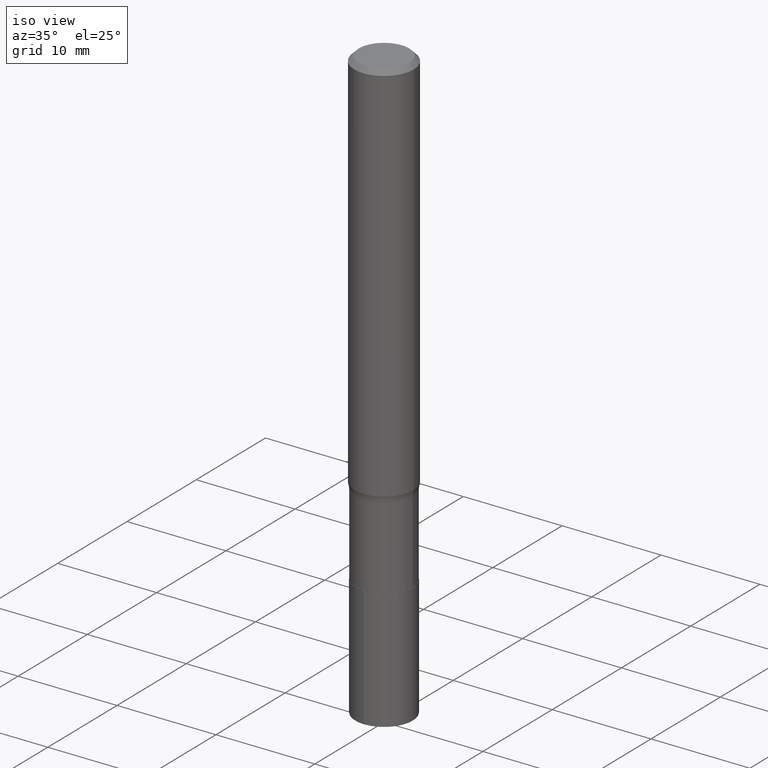
[diagram: clean part render]
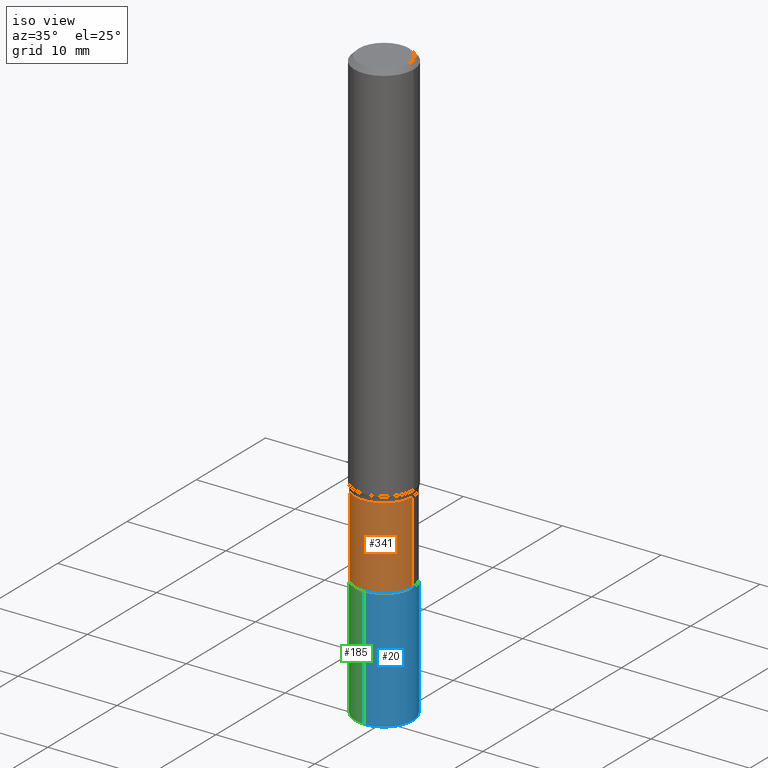
[diagram: same view with three faces highlighted in distinct colors, each labeled with its STEP entity id]
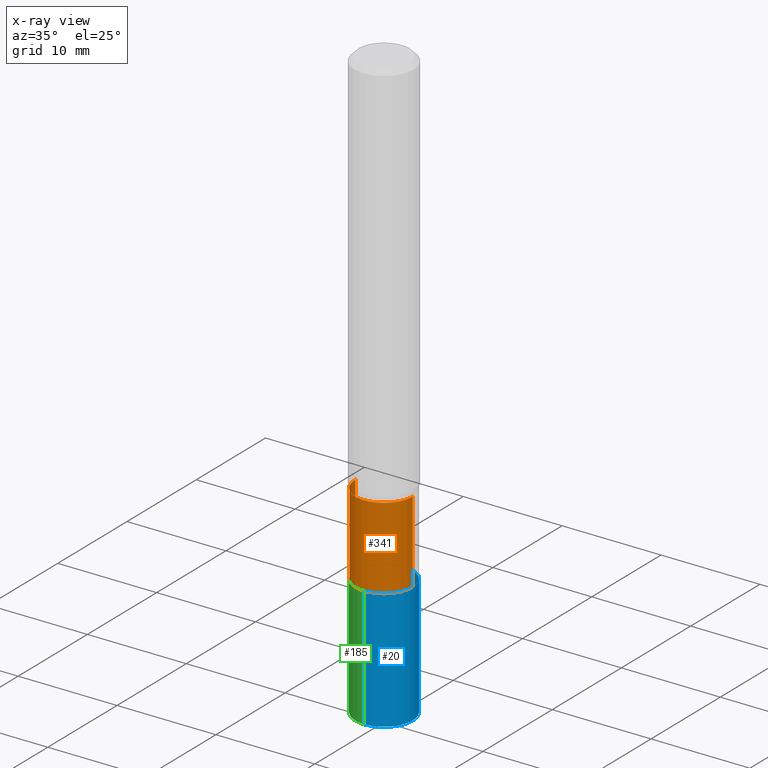
[diagram: x-ray of the same camera — body ghosted, the three highlighted faces saturated]
A machine part, iso view with three faces highlighted in distinct colors.
The next image is the same camera in x-ray (body ghosted, the three faces saturated) — at least one of them is partly hidden behind the body in this view.
Their STEP definitions:

[orange] entity #341 — the highlighted cylindrical surface (edge-blend (fillet) strip) has radius 2.8994 mm, axis along (-0, 0, 1).
#14 = ORIENTED_EDGE ( 'NONE', *, *, #382, .F. ) ;
#17 = AXIS2_PLACEMENT_3D ( 'NONE', #392, #108, #65 ) ;
#23 = CARTESIAN_POINT ( 'NONE',  ( -0.1141499999999999737, 8.110845328701541754E-16, -5.614964405525973971E-30 ) ) ;
#24 = ORIENTED_EDGE ( 'NONE', *, *, #431, .T. ) ;
#25 = CARTESIAN_POINT ( 'NONE',  ( 4.601638652598572305E-29, -6.569920435301148433E-15, -1.881700000000000372 ) ) ;
#38 = CARTESIAN_POINT ( 'NONE',  ( 3.805149462424072876E-29, -5.432744963239936043E-15, -1.556000000000000272 ) ) ;
#41 = CARTESIAN_POINT ( 'NONE',  ( -0.1141499999999999598, -5.190248166400388062E-15, -1.556000000000000272 ) ) ;
#65 = DIRECTION ( 'NONE',  ( 1.000000000000000000, -6.982962677686266711E-15, 4.876176775795935793E-29 ) ) ;
#71 = CYLINDRICAL_SURFACE ( 'NONE', #17, 0.1141499999999999737 ) ;
#79 = VERTEX_POINT ( 'NONE', #417 ) ;
#80 = EDGE_CURVE ( 'NONE', #438, #375, #85, .T. ) ;
#85 = LINE ( 'NONE', #23, #274 ) ;
#88 = ORIENTED_EDGE ( 'NONE', *, *, #80, .F. ) ;
#89 = CIRCLE ( 'NONE', #222, 0.1141499999999999598 ) ;
#91 = DIRECTION ( 'NONE',  ( -2.445468806185136877E-29, 3.491481338843145188E-15, 1.000000000000000000 ) ) ;
#96 = VERTEX_POINT ( 'NONE', #265 ) ;
#108 = DIRECTION ( 'NONE',  ( -2.445468806185136597E-29, 3.491481338843145583E-15, 1.000000000000000000 ) ) ;
#116 = ORIENTED_EDGE ( 'NONE', *, *, #436, .T. ) ;
#160 = CARTESIAN_POINT ( 'NONE',  ( 0.1141499999999999737, -7.971051896578871257E-16, 5.566155789571059486E-30 ) ) ;
#197 = LINE ( 'NONE', #160, #325 ) ;
#220 = EDGE_LOOP ( 'NONE', ( #88, #24, #116, #14 ) ) ;
#222 = AXIS2_PLACEMENT_3D ( 'NONE', #38, #312, #465 ) ;
#224 = CARTESIAN_POINT ( 'NONE',  ( -0.1141500000000000015, -5.190248166400388062E-15, -1.881700000000000372 ) ) ;
#251 = AXIS2_PLACEMENT_3D ( 'NONE', #25, #453, #263 ) ;
#263 = DIRECTION ( 'NONE',  ( 1.000000000000000000, -6.982962677686264344E-15, 0.000000000000000000 ) ) ;
#265 = CARTESIAN_POINT ( 'NONE',  ( 0.1141499999999999598, -6.229850152897822971E-15, -1.556000000000000272 ) ) ;
#274 = VECTOR ( 'NONE', #91, 39.37007874015748143 ) ;
#277 = FACE_OUTER_BOUND ( 'NONE', #220, .T. ) ;
#309 = DIRECTION ( 'NONE',  ( -2.445468806185136877E-29, 3.491481338843145188E-15, 1.000000000000000000 ) ) ;
#312 = DIRECTION ( 'NONE',  ( -2.445468806185136597E-29, 3.491481338843145583E-15, 1.000000000000000000 ) ) ;
#325 = VECTOR ( 'NONE', #309, 39.37007874015748143 ) ;
#341 = ADVANCED_FACE ( 'NONE', ( #277 ), #71, .T. ) ;
#375 = VERTEX_POINT ( 'NONE', #41 ) ;
#382 = EDGE_CURVE ( 'NONE', #375, #96, #89, .T. ) ;
#386 = CIRCLE ( 'NONE', #251, 0.1141500000000000015 ) ;
#392 = CARTESIAN_POINT ( 'NONE',  ( 0.000000000000000000, 0.000000000000000000, 0.000000000000000000 ) ) ;
#417 = CARTESIAN_POINT ( 'NONE',  ( 0.1141500000000000015, -7.367025624959035361E-15, -1.881700000000000372 ) ) ;
#431 = EDGE_CURVE ( 'NONE', #438, #79, #386, .T. ) ;
#436 = EDGE_CURVE ( 'NONE', #79, #96, #197, .T. ) ;
#438 = VERTEX_POINT ( 'NONE', #224 ) ;
#453 = DIRECTION ( 'NONE',  ( -2.445468806185136597E-29, 3.491481338843145583E-15, 1.000000000000000000 ) ) ;
#465 = DIRECTION ( 'NONE',  ( 1.000000000000000000, -6.982962677686267499E-15, 0.000000000000000000 ) ) ;

[blue] entity #20 — the highlighted cylindrical surface (edge-blend (fillet) strip) has radius 2.8994 mm, axis along (-0, 0, 1).
#8 = CARTESIAN_POINT ( 'NONE',  ( 8.110845328702120580E-16, 0.1141499999999934234, -1.882200000000000539 ) ) ;
#9 = VERTEX_POINT ( 'NONE', #187 ) ;
#20 = ADVANCED_FACE ( 'NONE', ( #290 ), #299, .T. ) ;
#32 = DIRECTION ( 'NONE',  ( -6.982962677686264344E-15, -1.000000000000000000, 2.393208930060677491E-15 ) ) ;
#49 = VECTOR ( 'NONE', #366, 39.37007874015748143 ) ;
#60 = EDGE_LOOP ( 'NONE', ( #267, #252, #176, #426 ) ) ;
#63 = DIRECTION ( 'NONE',  ( -2.478387479907600418E-29, 3.444339924458025232E-15, 1.000000000000000000 ) ) ;
#75 = AXIS2_PLACEMENT_3D ( 'NONE', #210, #63, #169 ) ;
#76 = CARTESIAN_POINT ( 'NONE',  ( 4.602861387001665106E-29, -6.571666175970569936E-15, -1.882200000000000317 ) ) ;
#118 = CIRCLE ( 'NONE', #258, 0.1141500000000000015 ) ;
#128 = VERTEX_POINT ( 'NONE', #260 ) ;
#129 = CARTESIAN_POINT ( 'NONE',  ( -7.971051896578411746E-16, -0.1141500000000065657, -1.882199999999999873 ) ) ;
#166 = VECTOR ( 'NONE', #433, 39.37007874015748143 ) ;
#169 = DIRECTION ( 'NONE',  ( -6.982962677686265922E-15, -1.000000000000000000, 2.393208930060677886E-15 ) ) ;
#175 = DIRECTION ( 'NONE',  ( -2.478387479907600418E-29, 3.444339924458025232E-15, 1.000000000000000000 ) ) ;
#176 = ORIENTED_EDGE ( 'NONE', *, *, #442, .F. ) ;
#187 = CARTESIAN_POINT ( 'NONE',  ( -7.971051896578291444E-16, -0.1141500000000082032, -2.362200000000000522 ) ) ;
#210 = CARTESIAN_POINT ( 'NONE',  ( 5.792487377357314585E-29, -8.224949339710423941E-15, -2.362200000000000966 ) ) ;
#217 = CARTESIAN_POINT ( 'NONE',  ( 8.110845328702002251E-16, 0.1141499999999934234, -1.882200000000000539 ) ) ;
#230 = DIRECTION ( 'NONE',  ( -6.982962677686264344E-15, -1.000000000000000000, 2.393208930060677491E-15 ) ) ;
#239 = LINE ( 'NONE', #217, #49 ) ;
#242 = LINE ( 'NONE', #394, #166 ) ;
#248 = EDGE_CURVE ( 'NONE', #9, #128, #264, .T. ) ;
#252 = ORIENTED_EDGE ( 'NONE', *, *, #391, .T. ) ;
#258 = AXIS2_PLACEMENT_3D ( 'NONE', #393, #318, #32 ) ;
#260 = CARTESIAN_POINT ( 'NONE',  ( 8.110845328702060430E-16, 0.1141499999999917442, -2.362200000000000966 ) ) ;
#264 = CIRCLE ( 'NONE', #75, 0.1141499999999999737 ) ;
#267 = ORIENTED_EDGE ( 'NONE', *, *, #248, .T. ) ;
#290 = FACE_OUTER_BOUND ( 'NONE', #60, .T. ) ;
#299 = CYLINDRICAL_SURFACE ( 'NONE', #415, 0.1141500000000000015 ) ;
#308 = EDGE_CURVE ( 'NONE', #9, #388, #242, .T. ) ;
#318 = DIRECTION ( 'NONE',  ( -2.478387479907600418E-29, 3.444339924458025232E-15, 1.000000000000000000 ) ) ;
#366 = DIRECTION ( 'NONE',  ( -2.478387479907600418E-29, 3.444339924458025232E-15, 1.000000000000000000 ) ) ;
#388 = VERTEX_POINT ( 'NONE', #129 ) ;
#391 = EDGE_CURVE ( 'NONE', #128, #419, #239, .T. ) ;
#393 = CARTESIAN_POINT ( 'NONE',  ( 4.602861387001665106E-29, -6.571666175970569936E-15, -1.882200000000000317 ) ) ;
#394 = CARTESIAN_POINT ( 'NONE',  ( -7.971051896578411746E-16, -0.1141500000000065657, -1.882199999999999873 ) ) ;
#415 = AXIS2_PLACEMENT_3D ( 'NONE', #76, #175, #230 ) ;
#419 = VERTEX_POINT ( 'NONE', #8 ) ;
#426 = ORIENTED_EDGE ( 'NONE', *, *, #308, .F. ) ;
#433 = DIRECTION ( 'NONE',  ( -2.478387479907600418E-29, 3.444339924458025232E-15, 1.000000000000000000 ) ) ;
#442 = EDGE_CURVE ( 'NONE', #388, #419, #118, .T. ) ;

[green] entity #185 — the highlighted cylindrical surface (edge-blend (fillet) strip) has radius 2.8994 mm, axis along (-0, 0, 1).
#8 = CARTESIAN_POINT ( 'NONE',  ( 8.110845328702120580E-16, 0.1141499999999934234, -1.882200000000000539 ) ) ;
#9 = VERTEX_POINT ( 'NONE', #187 ) ;
#10 = AXIS2_PLACEMENT_3D ( 'NONE', #155, #26, #305 ) ;
#26 = DIRECTION ( 'NONE',  ( -2.478387479907600418E-29, 3.444339924458025232E-15, 1.000000000000000000 ) ) ;
#49 = VECTOR ( 'NONE', #366, 39.37007874015748143 ) ;
#112 = ORIENTED_EDGE ( 'NONE', *, *, #270, .T. ) ;
#120 = DIRECTION ( 'NONE',  ( -2.478387479907600418E-29, 3.444339924458025232E-15, 1.000000000000000000 ) ) ;
#128 = VERTEX_POINT ( 'NONE', #260 ) ;
#129 = CARTESIAN_POINT ( 'NONE',  ( -7.971051896578411746E-16, -0.1141500000000065657, -1.882199999999999873 ) ) ;
#132 = DIRECTION ( 'NONE',  ( -6.982962677686265922E-15, -1.000000000000000000, 2.393208930060677886E-15 ) ) ;
#136 = AXIS2_PLACEMENT_3D ( 'NONE', #310, #120, #161 ) ;
#137 = CARTESIAN_POINT ( 'NONE',  ( 5.792487377357314585E-29, -8.224949339710423941E-15, -2.362200000000000966 ) ) ;
#150 = ORIENTED_EDGE ( 'NONE', *, *, #391, .F. ) ;
#154 = FACE_OUTER_BOUND ( 'NONE', #422, .T. ) ;
#155 = CARTESIAN_POINT ( 'NONE',  ( 4.602861387001665106E-29, -6.571666175970569936E-15, -1.882200000000000317 ) ) ;
#157 = EDGE_CURVE ( 'NONE', #419, #388, #348, .T. ) ;
#161 = DIRECTION ( 'NONE',  ( -6.982962677686264344E-15, -1.000000000000000000, 2.393208930060677491E-15 ) ) ;
#166 = VECTOR ( 'NONE', #433, 39.37007874015748143 ) ;
#185 = ADVANCED_FACE ( 'NONE', ( #154 ), #302, .T. ) ;
#187 = CARTESIAN_POINT ( 'NONE',  ( -7.971051896578291444E-16, -0.1141500000000082032, -2.362200000000000522 ) ) ;
#188 = CIRCLE ( 'NONE', #363, 0.1141499999999999737 ) ;
#217 = CARTESIAN_POINT ( 'NONE',  ( 8.110845328702002251E-16, 0.1141499999999934234, -1.882200000000000539 ) ) ;
#239 = LINE ( 'NONE', #217, #49 ) ;
#242 = LINE ( 'NONE', #394, #166 ) ;
#257 = ORIENTED_EDGE ( 'NONE', *, *, #157, .F. ) ;
#260 = CARTESIAN_POINT ( 'NONE',  ( 8.110845328702060430E-16, 0.1141499999999917442, -2.362200000000000966 ) ) ;
#270 = EDGE_CURVE ( 'NONE', #128, #9, #188, .T. ) ;
#302 = CYLINDRICAL_SURFACE ( 'NONE', #136, 0.1141500000000000015 ) ;
#305 = DIRECTION ( 'NONE',  ( -6.982962677686264344E-15, -1.000000000000000000, 2.393208930060677491E-15 ) ) ;
#308 = EDGE_CURVE ( 'NONE', #9, #388, #242, .T. ) ;
#310 = CARTESIAN_POINT ( 'NONE',  ( 4.602861387001665106E-29, -6.571666175970569936E-15, -1.882200000000000317 ) ) ;
#348 = CIRCLE ( 'NONE', #10, 0.1141500000000000015 ) ;
#363 = AXIS2_PLACEMENT_3D ( 'NONE', #137, #430, #132 ) ;
#366 = DIRECTION ( 'NONE',  ( -2.478387479907600418E-29, 3.444339924458025232E-15, 1.000000000000000000 ) ) ;
#388 = VERTEX_POINT ( 'NONE', #129 ) ;
#391 = EDGE_CURVE ( 'NONE', #128, #419, #239, .T. ) ;
#394 = CARTESIAN_POINT ( 'NONE',  ( -7.971051896578411746E-16, -0.1141500000000065657, -1.882199999999999873 ) ) ;
#419 = VERTEX_POINT ( 'NONE', #8 ) ;
#422 = EDGE_LOOP ( 'NONE', ( #150, #112, #463, #257 ) ) ;
#430 = DIRECTION ( 'NONE',  ( -2.478387479907600418E-29, 3.444339924458025232E-15, 1.000000000000000000 ) ) ;
#433 = DIRECTION ( 'NONE',  ( -2.478387479907600418E-29, 3.444339924458025232E-15, 1.000000000000000000 ) ) ;
#463 = ORIENTED_EDGE ( 'NONE', *, *, #308, .T. ) ;